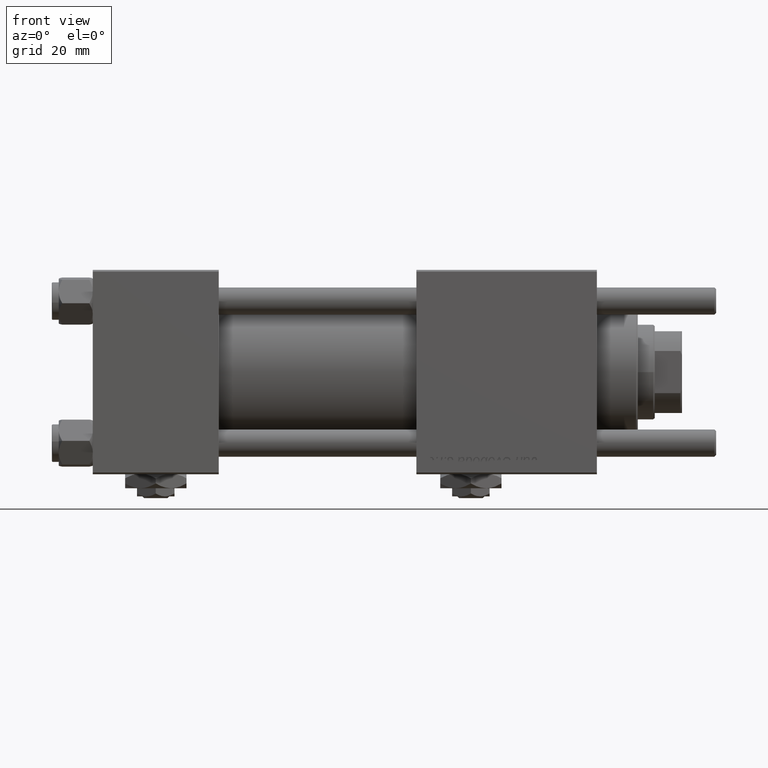
[diagram: clean part render]
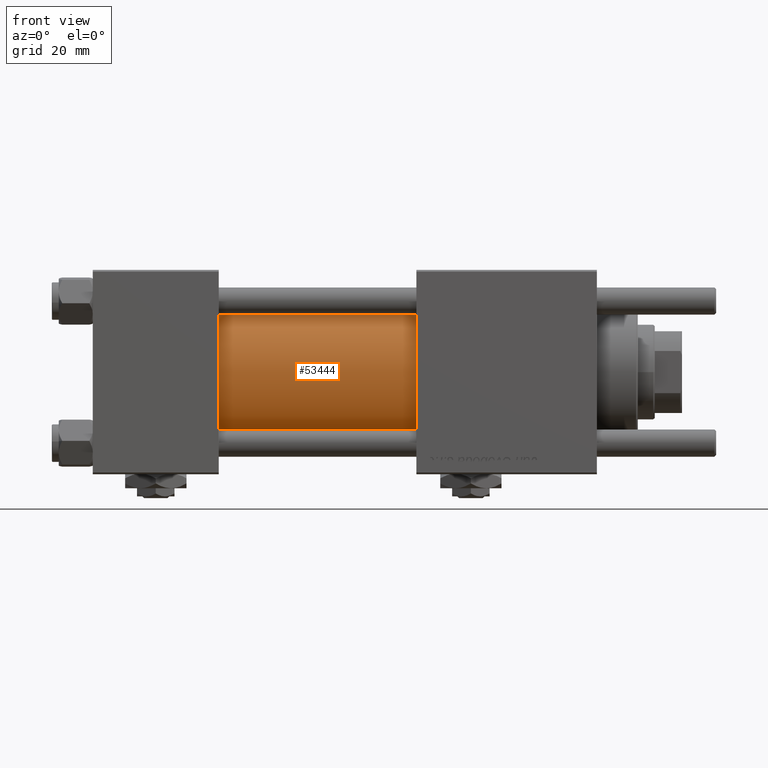
[diagram: same view with one face highlighted and labeled with its STEP entity id]
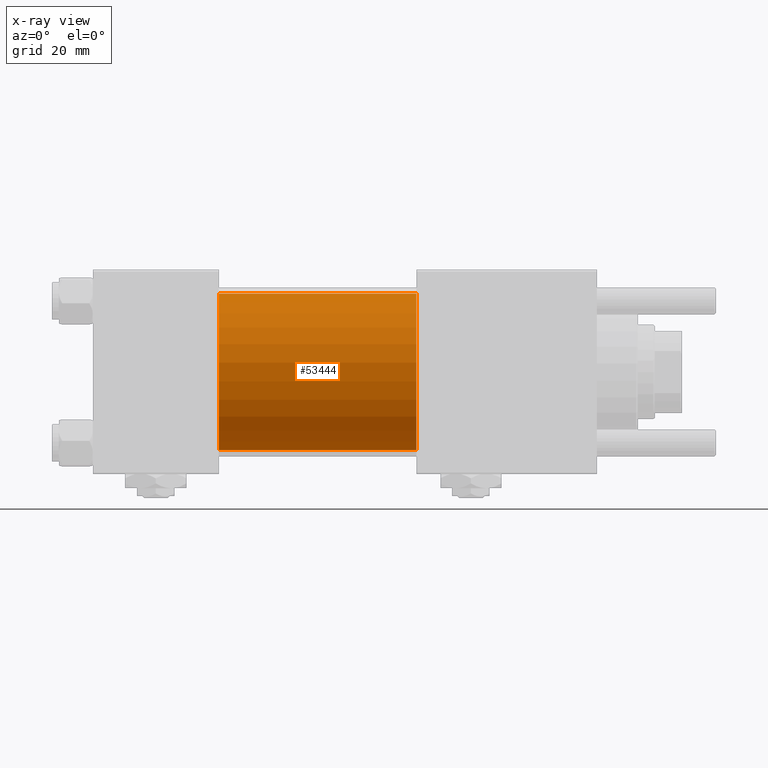
[diagram: x-ray of the same camera — body ghosted, the highlighted face saturated]
A machine part, front view. The second image highlights one B-rep face of the part: STEP entity #53444.
The next image is the same camera in x-ray: the body ghosted, the highlighted face saturated — about 0% of this face is hidden behind the body in this view.
In plain terms, the highlighted cylindrical surface (partial cylindrical patch) has radius 23 mm, axis along (-1, -0, -0).
Its self-contained STEP definition (entity closure, byte-faithful):
#1001 = EDGE_CURVE ( 'NONE', #14592, #43388, #13794, .T. ) ;
#1017 = CIRCLE ( 'NONE', #21874, 23.00000000000000000 ) ;
#1176 = ORIENTED_EDGE ( 'NONE', *, *, #21150, .F. ) ;
#1538 = DIRECTION ( 'NONE',  ( 0.000000000000000000, 0.000000000000000000, -1.000000000000000000 ) ) ;
#1598 = DIRECTION ( 'NONE',  ( 1.000000000000000000, -0.000000000000000000, 0.000000000000000000 ) ) ;
#1990 = CARTESIAN_POINT ( 'NONE',  ( 95.00000000000000000, 2.146024240737012665E-16, -23.00000000000000000 ) ) ;
#3488 = DIRECTION ( 'NONE',  ( 1.000000000000000000, 0.000000000000000000, 0.000000000000000000 ) ) ;
#3909 = CARTESIAN_POINT ( 'NONE',  ( 95.00000000000000000, -2.602085213965210642E-15, 23.00000000000000000 ) ) ;
#4511 = CARTESIAN_POINT ( 'NONE',  ( 37.00000000000000000, 2.146024240737012665E-16, -23.00000000000000000 ) ) ;
#6191 = CARTESIAN_POINT ( 'NONE',  ( 37.00000000000000000, -2.602085213965210642E-15, 23.00000000000000000 ) ) ;
#6910 = ORIENTED_EDGE ( 'NONE', *, *, #53412, .T. ) ;
#13386 = DIRECTION ( 'NONE',  ( -1.000000000000000000, -0.000000000000000000, -0.000000000000000000 ) ) ;
#13794 = CIRCLE ( 'NONE', #29938, 23.00000000000000000 ) ;
#14592 = VERTEX_POINT ( 'NONE', #6191 ) ;
#14971 = DIRECTION ( 'NONE',  ( 0.000000000000000000, 0.000000000000000000, 1.000000000000000000 ) ) ;
#19486 = AXIS2_PLACEMENT_3D ( 'NONE', #21954, #58595, #29794 ) ;
#21150 = EDGE_CURVE ( 'NONE', #57693, #28767, #1017, .T. ) ;
#21874 = AXIS2_PLACEMENT_3D ( 'NONE', #34758, #3488, #1538 ) ;
#21954 = CARTESIAN_POINT ( 'NONE',  ( 95.00000000000000000, -2.602085213965210642E-15, 0.000000000000000000 ) ) ;
#24196 = CARTESIAN_POINT ( 'NONE',  ( 37.00000000000000000, -2.602085213965210642E-15, 0.000000000000000000 ) ) ;
#25528 = VECTOR ( 'NONE', #13386, 1000.000000000000000 ) ;
#25581 = EDGE_CURVE ( 'NONE', #28767, #43388, #42778, .T. ) ;
#28767 = VERTEX_POINT ( 'NONE', #37482 ) ;
#29794 = DIRECTION ( 'NONE',  ( 0.000000000000000000, 0.000000000000000000, 1.000000000000000000 ) ) ;
#29938 = AXIS2_PLACEMENT_3D ( 'NONE', #24196, #1598, #14971 ) ;
#34758 = CARTESIAN_POINT ( 'NONE',  ( 95.00000000000000000, -2.602085213965210642E-15, 0.000000000000000000 ) ) ;
#37482 = CARTESIAN_POINT ( 'NONE',  ( 95.00000000000000000, 2.146024240737012665E-16, -23.00000000000000000 ) ) ;
#37679 = VECTOR ( 'NONE', #40728, 1000.000000000000000 ) ;
#39968 = EDGE_LOOP ( 'NONE', ( #45688, #1176, #6910, #44825 ) ) ;
#40424 = LINE ( 'NONE', #44903, #37679 ) ;
#40728 = DIRECTION ( 'NONE',  ( -1.000000000000000000, -0.000000000000000000, -0.000000000000000000 ) ) ;
#42778 = LINE ( 'NONE', #1990, #25528 ) ;
#43388 = VERTEX_POINT ( 'NONE', #4511 ) ;
#44825 = ORIENTED_EDGE ( 'NONE', *, *, #1001, .T. ) ;
#44903 = CARTESIAN_POINT ( 'NONE',  ( 95.00000000000000000, -2.602085213965210642E-15, 23.00000000000000000 ) ) ;
#45688 = ORIENTED_EDGE ( 'NONE', *, *, #25581, .F. ) ;
#52457 = FACE_OUTER_BOUND ( 'NONE', #39968, .T. ) ;
#53412 = EDGE_CURVE ( 'NONE', #57693, #14592, #40424, .T. ) ;
#53444 = ADVANCED_FACE ( 'NONE', ( #52457 ), #53544, .T. ) ;
#53544 = CYLINDRICAL_SURFACE ( 'NONE', #19486, 23.00000000000000000 ) ;
#57693 = VERTEX_POINT ( 'NONE', #3909 ) ;
#58595 = DIRECTION ( 'NONE',  ( -1.000000000000000000, -0.000000000000000000, -0.000000000000000000 ) ) ;